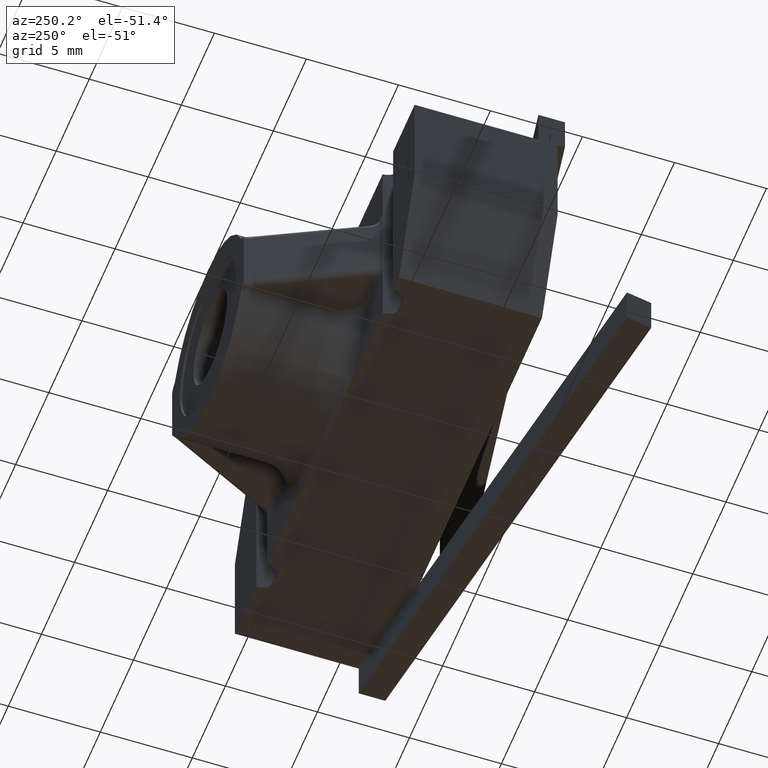
[diagram: clean part render]
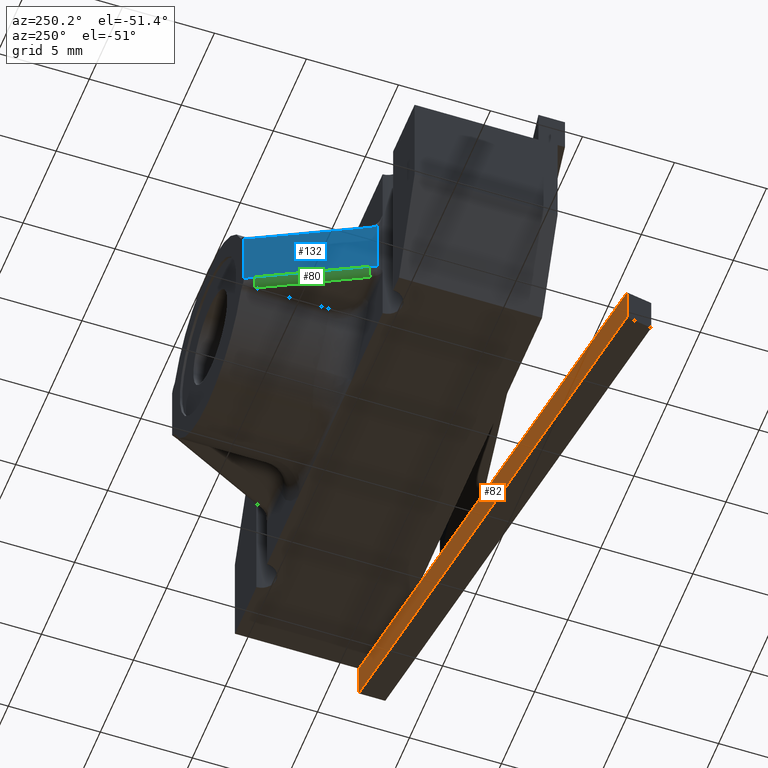
[diagram: same view with three faces highlighted in distinct colors, each labeled with its STEP entity id]
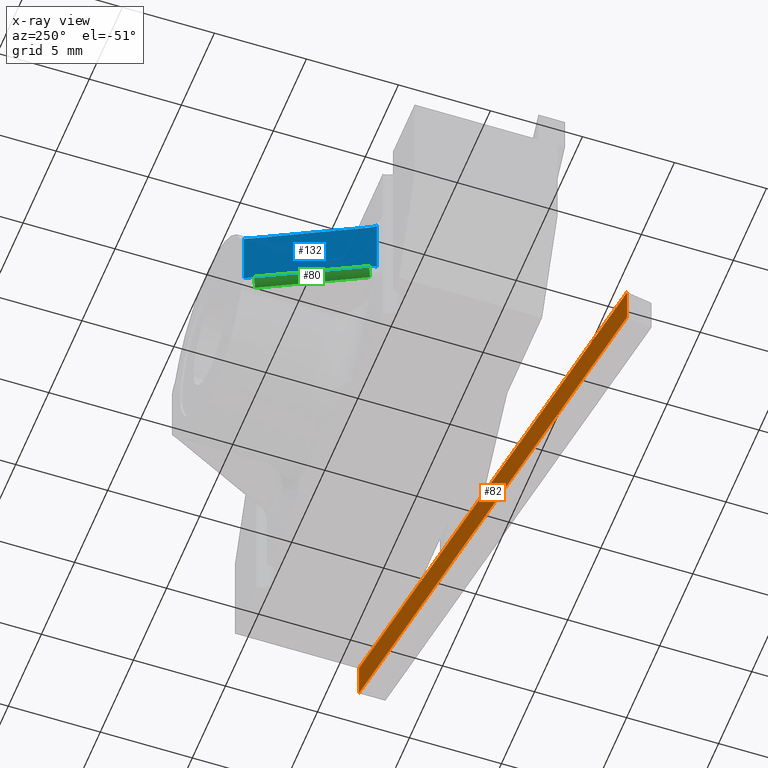
[diagram: x-ray of the same camera — body ghosted, the three highlighted faces saturated]
A machine part, auxiliary view with three faces highlighted in distinct colors.
The next image is the same camera in x-ray (body ghosted, the three faces saturated) — at least one of them is partly hidden behind the body in this view.
Their STEP definitions:

[orange] entity #82 — the highlighted planar face has unit normal (0.1622, -0.9868, 0).
#33 = LINE ( 'NONE', #4119, #36 ) ;
#36 = VECTOR ( 'NONE', #4122, 39.37007874015748100 ) ;
#82 = ADVANCED_FACE ( 'NONE', ( #1824 ), #400, .F. ) ;
#233 = ORIENTED_EDGE ( 'NONE', *, *, #3758, .F. ) ;
#262 = ORIENTED_EDGE ( 'NONE', *, *, #749, .F. ) ;
#274 = ORIENTED_EDGE ( 'NONE', *, *, #3767, .T. ) ;
#310 = CARTESIAN_POINT ( 'NONE',  ( -0.5605219988673189000, -0.4447411808841100200, -0.3039999999999999900 ) ) ;
#311 = DIRECTION ( 'NONE',  ( 0.9867646270694634400, 0.1621590909090905000, 0.0000000000000000000 ) ) ;
#347 = CARTESIAN_POINT ( 'NONE',  ( -0.5605219988673189000, -0.4447411808841100200, -0.2239999999999999800 ) ) ;
#348 = DIRECTION ( 'NONE',  ( 0.9867646270694634400, 0.1621590909090905000, 0.0000000000000000000 ) ) ;
#396 = CARTESIAN_POINT ( 'NONE',  ( -0.5605219988673189000, -0.4447411808841100200, -0.3039999999999999900 ) ) ;
#400 = PLANE ( 'NONE',  #2820 ) ;
#407 = DIRECTION ( 'NONE',  ( 0.1621590909090905300, -0.9867646270694635500, 0.0000000000000000000 ) ) ;
#408 = DIRECTION ( 'NONE',  ( 0.9867646270694634400, 0.1621590909090905000, 0.0000000000000000000 ) ) ;
#714 = ORIENTED_EDGE ( 'NONE', *, *, #3114, .T. ) ;
#749 = EDGE_CURVE ( 'NONE', #2993, #2098, #33, .T. ) ;
#782 = CARTESIAN_POINT ( 'NONE',  ( -0.5605219988673189000, -0.4447411808841100200, -0.3039999999999999900 ) ) ;
#783 = DIRECTION ( 'NONE',  ( -0.0000000000000000000, -0.0000000000000000000, 1.000000000000000000 ) ) ;
#960 = CARTESIAN_POINT ( 'NONE',  ( -0.5605219988673189000, -0.4447411808841100200, -0.2239999999999999800 ) ) ;
#966 = DIRECTION ( 'NONE',  ( 0.9867646270694634400, 0.1621590909090905000, 0.0000000000000000000 ) ) ;
#1081 = CARTESIAN_POINT ( 'NONE',  ( -0.5605219988673189000, -0.4447411808841100200, -0.2239999999999999800 ) ) ;
#1082 = CARTESIAN_POINT ( 'NONE',  ( 0.5340000000000000300, -0.2648738777325644300, -0.3039999999999999900 ) ) ;
#1083 = CARTESIAN_POINT ( 'NONE',  ( -0.5605219988673189000, -0.4447411808841100200, -0.3039999999999999900 ) ) ;
#1169 = VECTOR ( 'NONE', #783, 39.37007874015748100 ) ;
#1174 = LINE ( 'NONE', #782, #1169 ) ;
#1331 = LINE ( 'NONE', #960, #1350 ) ;
#1350 = VECTOR ( 'NONE', #966, 39.37007874015748100 ) ;
#1601 = ORIENTED_EDGE ( 'NONE', *, *, #2864, .T. ) ;
#1824 = FACE_OUTER_BOUND ( 'NONE', #3573, .T. ) ;
#2098 = VERTEX_POINT ( 'NONE', #3639 ) ;
#2175 = VERTEX_POINT ( 'NONE', #3717 ) ;
#2820 = AXIS2_PLACEMENT_3D ( 'NONE', #396, #407, #408 ) ;
#2864 = EDGE_CURVE ( 'NONE', #2988, #2175, #1331, .T. ) ;
#2988 = VERTEX_POINT ( 'NONE', #1081 ) ;
#2993 = VERTEX_POINT ( 'NONE', #1082 ) ;
#2994 = VERTEX_POINT ( 'NONE', #1083 ) ;
#3114 = EDGE_CURVE ( 'NONE', #2994, #2988, #1174, .T. ) ;
#3246 = LINE ( 'NONE', #347, #3258 ) ;
#3252 = LINE ( 'NONE', #310, #3253 ) ;
#3253 = VECTOR ( 'NONE', #311, 39.37007874015748100 ) ;
#3258 = VECTOR ( 'NONE', #348, 39.37007874015748100 ) ;
#3573 = EDGE_LOOP ( 'NONE', ( #1601, #274, #262, #233, #714 ) ) ;
#3639 = CARTESIAN_POINT ( 'NONE',  ( 0.5340000000000001400, -0.2648738777325644300, -0.2239999999999999800 ) ) ;
#3717 = CARTESIAN_POINT ( 'NONE',  ( 0.2837408102467108800, -0.3059999999999998800, -0.2239999999999999800 ) ) ;
#3758 = EDGE_CURVE ( 'NONE', #2994, #2993, #3252, .T. ) ;
#3767 = EDGE_CURVE ( 'NONE', #2175, #2098, #3246, .T. ) ;
#4119 = CARTESIAN_POINT ( 'NONE',  ( 0.5340000000000000300, -0.2648738777325644300, -0.3039999999999999900 ) ) ;
#4122 = DIRECTION ( 'NONE',  ( -0.0000000000000000000, -0.0000000000000000000, 1.000000000000000000 ) ) ;

[blue] entity #132 — the highlighted planar face has unit normal (0.8944, -0.4472, 0).
#5 = FACE_OUTER_BOUND ( 'NONE', #3551, .T. ) ;
#25 = VECTOR ( 'NONE', #4112, 39.37007874015748900 ) ;
#27 = LINE ( 'NONE', #4097, #25 ) ;
#51 = LINE ( 'NONE', #4141, #52 ) ;
#52 = VECTOR ( 'NONE', #4147, 39.37007874015748100 ) ;
#132 = ADVANCED_FACE ( 'NONE', ( #5 ), #2666, .F. ) ;
#146 = ORIENTED_EDGE ( 'NONE', *, *, #3749, .T. ) ;
#147 = ORIENTED_EDGE ( 'NONE', *, *, #2790, .T. ) ;
#284 = CARTESIAN_POINT ( 'NONE',  ( -0.3315018911683470000, 0.01299621766330628900, 0.06361968523475607100 ) ) ;
#285 = CARTESIAN_POINT ( 'NONE',  ( -0.3291303597844322200, 0.01773928043113581100, 0.06249999999999999300 ) ) ;
#286 = CARTESIAN_POINT ( 'NONE',  ( -0.3266936437851566400, 0.02261271242968685200, 0.06250000000000000000 ) ) ;
#295 = CARTESIAN_POINT ( 'NONE',  ( -0.3266936437851566400, 0.02261271242968685200, -0.06250000000000000000 ) ) ;
#300 = CARTESIAN_POINT ( 'NONE',  ( -0.3291303597844322200, 0.01773928043113581400, -0.06249999999999997200 ) ) ;
#301 = CARTESIAN_POINT ( 'NONE',  ( -0.3315018911683470000, 0.01299621766330628600, -0.06361968523475604300 ) ) ;
#302 = CARTESIAN_POINT ( 'NONE',  ( -0.3336813562148435200, 0.008637287570313139200, -0.06579915028125263300 ) ) ;
#308 = CARTESIAN_POINT ( 'NONE',  ( -0.2129999999999999900, 0.2500000000000000600, 0.06250000000000000000 ) ) ;
#309 = DIRECTION ( 'NONE',  ( 0.4472135954999581500, 0.8944271909999157400, -0.0000000000000000000 ) ) ;
#745 = EDGE_CURVE ( 'NONE', #2147, #2120, #27, .T. ) ;
#759 = EDGE_CURVE ( 'NONE', #2151, #2150, #51, .T. ) ;
#904 = CARTESIAN_POINT ( 'NONE',  ( -0.3336813562148435200, 0.008637287570313139200, 0.06579915028125264700 ) ) ;
#991 = CARTESIAN_POINT ( 'NONE',  ( -0.2129999999999999900, 0.2500000000000000000, -0.06397733888881325400 ) ) ;
#1002 = CARTESIAN_POINT ( 'NONE',  ( -0.2160759728460405500, 0.2438480543079189500, -0.06299638073903680900 ) ) ;
#1003 = CARTESIAN_POINT ( 'NONE',  ( -0.2192661913343427200, 0.2374676173313146100, -0.06250000000000001400 ) ) ;
#1004 = CARTESIAN_POINT ( 'NONE',  ( -0.2224947959619165700, 0.2310104080761668500, -0.06250000000000000000 ) ) ;
#1238 = ORIENTED_EDGE ( 'NONE', *, *, #3754, .T. ) ;
#1239 = ORIENTED_EDGE ( 'NONE', *, *, #745, .T. ) ;
#1240 = ORIENTED_EDGE ( 'NONE', *, *, #2885, .T. ) ;
#1241 = ORIENTED_EDGE ( 'NONE', *, *, #759, .T. ) ;
#1242 = ORIENTED_EDGE ( 'NONE', *, *, #2795, .T. ) ;
#1243 = ORIENTED_EDGE ( 'NONE', *, *, #3757, .T. ) ;
#1324 = LINE ( 'NONE', #2298, #1328 ) ;
#1328 = VECTOR ( 'NONE', #2299, 39.37007874015748100 ) ;
#2118 = VERTEX_POINT ( 'NONE', #3663 ) ;
#2120 = VERTEX_POINT ( 'NONE', #3665 ) ;
#2121 = VERTEX_POINT ( 'NONE', #3666 ) ;
#2138 = VERTEX_POINT ( 'NONE', #3680 ) ;
#2147 = VERTEX_POINT ( 'NONE', #3689 ) ;
#2150 = VERTEX_POINT ( 'NONE', #3692 ) ;
#2151 = VERTEX_POINT ( 'NONE', #3693 ) ;
#2171 = VERTEX_POINT ( 'NONE', #3713 ) ;
#2298 = CARTESIAN_POINT ( 'NONE',  ( -0.3336813562148435200, 0.008637287570313139200, 0.07812500000000000000 ) ) ;
#2299 = DIRECTION ( 'NONE',  ( -0.0000000000000000000, -0.0000000000000000000, 1.000000000000000000 ) ) ;
#2313 = CARTESIAN_POINT ( 'NONE',  ( -0.2224947959619165700, 0.2310104080761668500, 0.06250000000000001400 ) ) ;
#2317 = CARTESIAN_POINT ( 'NONE',  ( -0.2192661913343427200, 0.2374676173313146100, 0.06250000000000001400 ) ) ;
#2318 = CARTESIAN_POINT ( 'NONE',  ( -0.2160759728460405500, 0.2438480543079189500, 0.06299638073903680900 ) ) ;
#2319 = CARTESIAN_POINT ( 'NONE',  ( -0.2129999999999999900, 0.2500000000000000000, 0.06397733888881324000 ) ) ;
#2342 =( BOUNDED_CURVE ( )  B_SPLINE_CURVE ( 3, ( #904, #284, #285, #286 ),
 .UNSPECIFIED., .F., .T. ) 
 B_SPLINE_CURVE_WITH_KNOTS ( ( 4, 4 ),
 ( 1.107148717794090200, 1.570796326794897700 ),
 .UNSPECIFIED. ) 
 CURVE ( )  GEOMETRIC_REPRESENTATION_ITEM ( )  RATIONAL_B_SPLINE_CURVE ( ( 1.000000000000000000, 0.9821659929784865000, 0.9821659929784865000, 1.000000000000000000 ) ) 
 REPRESENTATION_ITEM ( '' )  );
#2343 =( BOUNDED_CURVE ( )  B_SPLINE_CURVE ( 3, ( #2313, #2317, #2318, #2319 ),
 .UNSPECIFIED., .F., .T. ) 
 B_SPLINE_CURVE_WITH_KNOTS ( ( 4, 4 ),
 ( 1.570796326794896600, 1.879510103460315700 ),
 .UNSPECIFIED. ) 
 CURVE ( )  GEOMETRIC_REPRESENTATION_ITEM ( )  RATIONAL_B_SPLINE_CURVE ( ( 1.000000000000000000, 0.9920737400622116100, 0.9920737400622116100, 1.000000000000000000 ) ) 
 REPRESENTATION_ITEM ( '' )  );
#2346 =( BOUNDED_CURVE ( )  B_SPLINE_CURVE ( 3, ( #991, #1002, #1003, #1004 ),
 .UNSPECIFIED., .F., .T. ) 
 B_SPLINE_CURVE_WITH_KNOTS ( ( 4, 4 ),
 ( 4.403675203719270600, 4.712388980384689700 ),
 .UNSPECIFIED. ) 
 CURVE ( )  GEOMETRIC_REPRESENTATION_ITEM ( )  RATIONAL_B_SPLINE_CURVE ( ( 1.000000000000000000, 0.9920737400622116100, 0.9920737400622116100, 1.000000000000000000 ) ) 
 REPRESENTATION_ITEM ( '' )  );
#2351 =( BOUNDED_CURVE ( )  B_SPLINE_CURVE ( 3, ( #295, #300, #301, #302 ),
 .UNSPECIFIED., .F., .T. ) 
 B_SPLINE_CURVE_WITH_KNOTS ( ( 4, 4 ),
 ( 1.570796326794895400, 2.034443935795703200 ),
 .UNSPECIFIED. ) 
 CURVE ( )  GEOMETRIC_REPRESENTATION_ITEM ( )  RATIONAL_B_SPLINE_CURVE ( ( 1.000000000000000000, 0.9821659929784865000, 0.9821659929784865000, 1.000000000000000000 ) ) 
 REPRESENTATION_ITEM ( '' )  );
#2660 = CARTESIAN_POINT ( 'NONE',  ( -0.2129999999999999900, 0.2500000000000000000, 0.07812500000000000000 ) ) ;
#2666 = PLANE ( 'NONE',  #3183 ) ;
#2671 = DIRECTION ( 'NONE',  ( 0.8944271909999158600, -0.4472135954999582100, 0.0000000000000000000 ) ) ;
#2672 = DIRECTION ( 'NONE',  ( 0.4472135954999581500, 0.8944271909999157400, 0.0000000000000000000 ) ) ;
#2790 = EDGE_CURVE ( 'NONE', #2118, #2138, #1324, .T. ) ;
#2795 = EDGE_CURVE ( 'NONE', #2121, #2151, #2343, .T. ) ;
#2885 = EDGE_CURVE ( 'NONE', #2150, #2147, #2346, .T. ) ;
#3183 = AXIS2_PLACEMENT_3D ( 'NONE', #2660, #2671, #2672 ) ;
#3250 = LINE ( 'NONE', #308, #3251 ) ;
#3251 = VECTOR ( 'NONE', #309, 39.37007874015748900 ) ;
#3551 = EDGE_LOOP ( 'NONE', ( #147, #146, #1243, #1242, #1241, #1240, #1239, #1238 ) ) ;
#3663 = CARTESIAN_POINT ( 'NONE',  ( -0.3336813562148435200, 0.008637287570313139200, -0.06579915028125263300 ) ) ;
#3665 = CARTESIAN_POINT ( 'NONE',  ( -0.3266936437851566400, 0.02261271242968685200, -0.06250000000000000000 ) ) ;
#3666 = CARTESIAN_POINT ( 'NONE',  ( -0.2224947959619165700, 0.2310104080761668500, 0.06250000000000001400 ) ) ;
#3680 = CARTESIAN_POINT ( 'NONE',  ( -0.3336813562148435200, 0.008637287570313139200, 0.06579915028125264700 ) ) ;
#3689 = CARTESIAN_POINT ( 'NONE',  ( -0.2224947959619165700, 0.2310104080761668500, -0.06250000000000000000 ) ) ;
#3692 = CARTESIAN_POINT ( 'NONE',  ( -0.2129999999999999900, 0.2500000000000000000, -0.06397733888881325400 ) ) ;
#3693 = CARTESIAN_POINT ( 'NONE',  ( -0.2129999999999999900, 0.2500000000000000000, 0.06397733888881324000 ) ) ;
#3713 = CARTESIAN_POINT ( 'NONE',  ( -0.3266936437851566400, 0.02261271242968685200, 0.06250000000000000000 ) ) ;
#3749 = EDGE_CURVE ( 'NONE', #2138, #2171, #2342, .T. ) ;
#3754 = EDGE_CURVE ( 'NONE', #2120, #2118, #2351, .T. ) ;
#3757 = EDGE_CURVE ( 'NONE', #2171, #2121, #3250, .T. ) ;
#4097 = CARTESIAN_POINT ( 'NONE',  ( -0.2129999999999999900, 0.2500000000000000000, -0.06250000000000000000 ) ) ;
#4112 = DIRECTION ( 'NONE',  ( -0.4472135954999581500, -0.8944271909999157400, 0.0000000000000000000 ) ) ;
#4141 = CARTESIAN_POINT ( 'NONE',  ( -0.2129999999999999900, 0.2500000000000000000, 0.07812500000000000000 ) ) ;
#4147 = DIRECTION ( 'NONE',  ( -0.0000000000000000000, -0.0000000000000000000, -1.000000000000000000 ) ) ;

[green] entity #80 — the highlighted cylindrical surface (edge-blend (fillet) strip) has radius 0.3969 mm, axis along (-0.4472, -0.8944, 0).
#25 = VECTOR ( 'NONE', #4112, 39.37007874015748900 ) ;
#27 = LINE ( 'NONE', #4097, #25 ) ;
#80 = ADVANCED_FACE ( 'NONE', ( #1821 ), #1822, .T. ) ;
#235 = ORIENTED_EDGE ( 'NONE', *, *, #3130, .T. ) ;
#259 = ORIENTED_EDGE ( 'NONE', *, *, #3756, .F. ) ;
#306 = CARTESIAN_POINT ( 'NONE',  ( -0.2865245751406262900, 0.06801228757031320400, -0.07812500000000000000 ) ) ;
#307 = DIRECTION ( 'NONE',  ( 0.4472135954999581500, 0.8944271909999157400, -0.0000000000000000000 ) ) ;
#398 = CARTESIAN_POINT ( 'NONE',  ( -0.1990245751406263000, 0.2430122875703131500, -0.06250000000000000000 ) ) ;
#401 = DIRECTION ( 'NONE',  ( -0.4472135954999582100, -0.8944271909999158600, 0.0000000000000000000 ) ) ;
#403 = DIRECTION ( 'NONE',  ( 0.8944271909999158600, -0.4472135954999579300, 0.0000000000000000000 ) ) ;
#745 = EDGE_CURVE ( 'NONE', #2147, #2120, #27, .T. ) ;
#852 = CARTESIAN_POINT ( 'NONE',  ( -0.2085193711025428700, 0.2240226956464800000, -0.06250000000000001400 ) ) ;
#853 = DIRECTION ( 'NONE',  ( -0.4472135954999580400, -0.8944271909999160800, -0.0000000000000000000 ) ) ;
#854 = DIRECTION ( 'NONE',  ( 0.8944271909999158600, -0.4472135954999579300, 0.0000000000000000000 ) ) ;
#868 = CARTESIAN_POINT ( 'NONE',  ( -0.3127182189257829400, 0.01562500000000000700, -0.06250000000000000000 ) ) ;
#869 = DIRECTION ( 'NONE',  ( -0.4472135954999578700, -0.8944271909999159700, 4.153846516260199800E-015 ) ) ;
#870 = DIRECTION ( 'NONE',  ( 0.8944271909999160800, -0.4472135954999575900, 0.0000000000000000000 ) ) ;
#1128 = ORIENTED_EDGE ( 'NONE', *, *, #3136, .F. ) ;
#1131 = ORIENTED_EDGE ( 'NONE', *, *, #745, .F. ) ;
#1197 = CIRCLE ( 'NONE', #1267, 0.01562500000000001400 ) ;
#1262 = AXIS2_PLACEMENT_3D ( 'NONE', #868, #869, #870 ) ;
#1267 = AXIS2_PLACEMENT_3D ( 'NONE', #852, #853, #854 ) ;
#1821 = FACE_OUTER_BOUND ( 'NONE', #3569, .T. ) ;
#1822 = CYLINDRICAL_SURFACE ( 'NONE', #2817, 0.01562500000000001400 ) ;
#2120 = VERTEX_POINT ( 'NONE', #3665 ) ;
#2147 = VERTEX_POINT ( 'NONE', #3689 ) ;
#2160 = VERTEX_POINT ( 'NONE', #3702 ) ;
#2172 = VERTEX_POINT ( 'NONE', #3714 ) ;
#2817 = AXIS2_PLACEMENT_3D ( 'NONE', #398, #401, #403 ) ;
#3130 = EDGE_CURVE ( 'NONE', #2147, #2160, #1197, .T. ) ;
#3136 = EDGE_CURVE ( 'NONE', #2120, #2172, #3209, .T. ) ;
#3209 = CIRCLE ( 'NONE', #1262, 0.01562500000000001000 ) ;
#3248 = LINE ( 'NONE', #306, #3249 ) ;
#3249 = VECTOR ( 'NONE', #307, 39.37007874015748900 ) ;
#3569 = EDGE_LOOP ( 'NONE', ( #235, #259, #1128, #1131 ) ) ;
#3665 = CARTESIAN_POINT ( 'NONE',  ( -0.3266936437851566400, 0.02261271242968685200, -0.06250000000000000000 ) ) ;
#3689 = CARTESIAN_POINT ( 'NONE',  ( -0.2224947959619165700, 0.2310104080761668500, -0.06250000000000000000 ) ) ;
#3702 = CARTESIAN_POINT ( 'NONE',  ( -0.2085193711025428700, 0.2240226956464800000, -0.07812500000000000000 ) ) ;
#3714 = CARTESIAN_POINT ( 'NONE',  ( -0.3127182189257830000, 0.01562500000000000000, -0.07812500000000000000 ) ) ;
#3756 = EDGE_CURVE ( 'NONE', #2172, #2160, #3248, .T. ) ;
#4097 = CARTESIAN_POINT ( 'NONE',  ( -0.2129999999999999900, 0.2500000000000000000, -0.06250000000000000000 ) ) ;
#4112 = DIRECTION ( 'NONE',  ( -0.4472135954999581500, -0.8944271909999157400, 0.0000000000000000000 ) ) ;